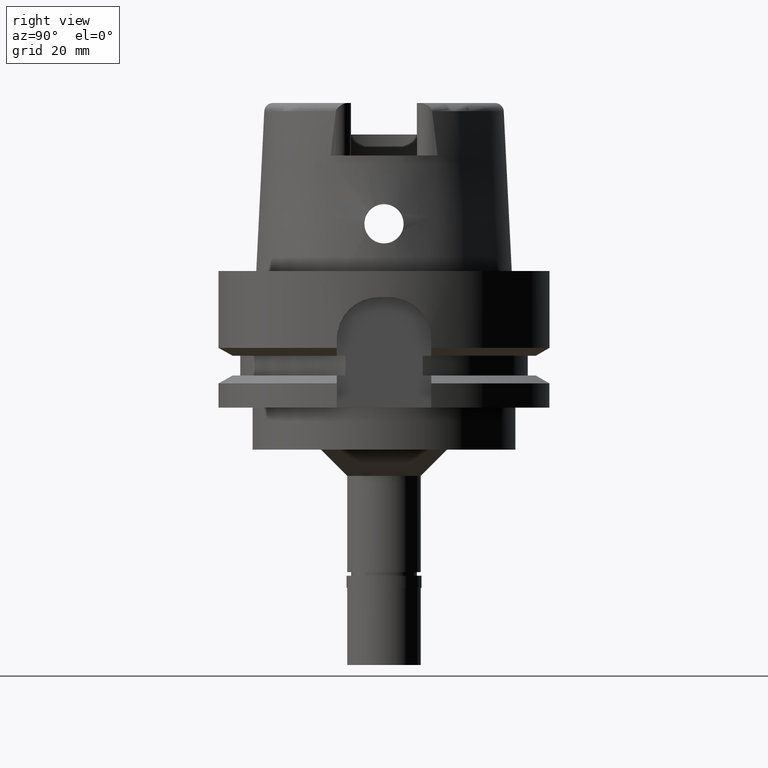
[diagram: clean part render]
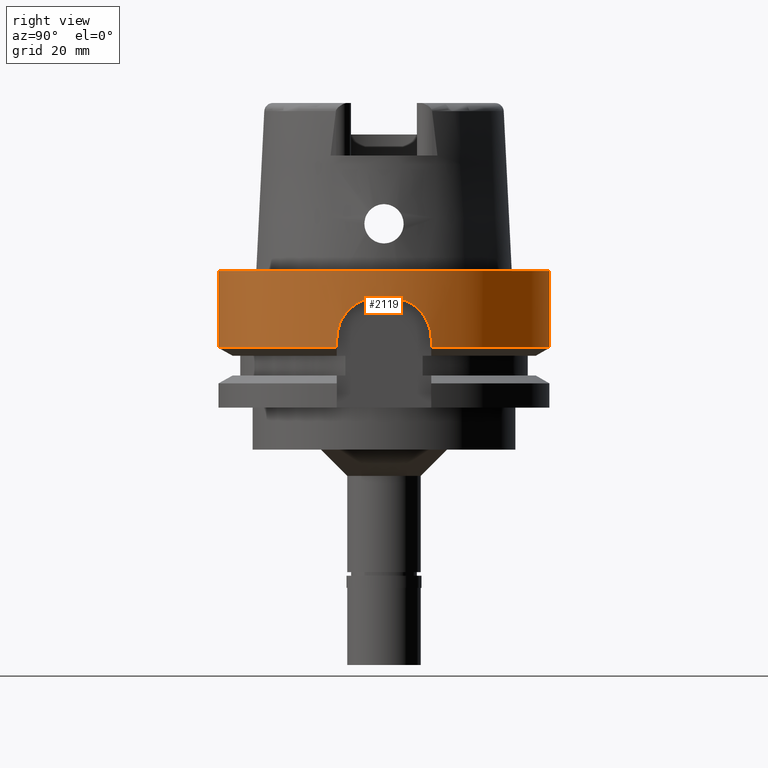
[diagram: same view with one face highlighted and labeled with its STEP entity id]
A machine part, right view. The second image highlights one B-rep face of the part: STEP entity #2119.
In plain terms, the highlighted cylindrical surface (partial cylindrical patch) has radius 31.5 mm, axis along (0, 0, 1).
Its self-contained STEP definition (entity closure, byte-faithful):
#26 = CARTESIAN_POINT ( 'NONE',  ( 31.03663344638616906, -5.383085633474435028, -6.307530880489624181 ) ) ;
#29 = CARTESIAN_POINT ( 'NONE',  ( 31.17435872104948658, 4.518659533347866741, -5.814278688376502302 ) ) ;
#54 = CARTESIAN_POINT ( 'NONE',  ( 31.24687946700141339, -3.985290593393691516, -5.577833305960743004 ) ) ;
#55 = CARTESIAN_POINT ( 'NONE',  ( 30.61213599318177359, 7.428751344989883876, -8.231414660720666632 ) ) ;
#80 = CARTESIAN_POINT ( 'NONE',  ( 30.18691769625000276, -9.000000000000000000, -13.00000000000000000 ) ) ;
#110 = CARTESIAN_POINT ( 'NONE',  ( 0.0000000000000000000, 31.50000000000000000, -14.62250092523999889 ) ) ;
#112 = CARTESIAN_POINT ( 'NONE',  ( 30.38338109575675361, -8.312749073352206253, -9.754961536940461642 ) ) ;
#115 = CARTESIAN_POINT ( 'NONE',  ( 30.99287078825288333, 5.628875832617762143, -6.474981235876556163 ) ) ;
#199 = CYLINDRICAL_SURFACE ( 'NONE', #3473, 31.50000000000000000 ) ;
#212 = VERTEX_POINT ( 'NONE', #4478 ) ;
#267 = EDGE_CURVE ( 'NONE', #4974, #5223, #1328, .T. ) ;
#300 = ORIENTED_EDGE ( 'NONE', *, *, #3530, .T. ) ;
#392 = ORIENTED_EDGE ( 'NONE', *, *, #3962, .F. ) ;
#411 = CARTESIAN_POINT ( 'NONE',  ( 31.46861672570978996, -1.488200907132173567, -5.000000000000000000 ) ) ;
#420 = VERTEX_POINT ( 'NONE', #3676 ) ;
#428 = DIRECTION ( 'NONE',  ( 0.9994959677099152229, -0.03174603174603050915, 0.0000000000000000000 ) ) ;
#442 = CARTESIAN_POINT ( 'NONE',  ( 30.55985815688181262, -7.638395794890114665, -8.535499152351128771 ) ) ;
#444 = CARTESIAN_POINT ( 'NONE',  ( 30.54939248822201492, 7.680150463132295435, -8.598226509369254700 ) ) ;
#449 = VECTOR ( 'NONE', #1901, 1000.000000000000114 ) ;
#458 = VERTEX_POINT ( 'NONE', #4113 ) ;
#469 = CARTESIAN_POINT ( 'NONE',  ( 30.79300890092531162, -6.636313573225984364, -7.322666656235493399 ) ) ;
#473 = CARTESIAN_POINT ( 'NONE',  ( 31.23363680802097875, 4.087791824858366674, -5.619918997865053001 ) ) ;
#495 = CARTESIAN_POINT ( 'NONE',  ( 30.24477678760666421, -8.814620020295809155, -10.96570500827552053 ) ) ;
#498 = CARTESIAN_POINT ( 'NONE',  ( 30.53467349584955315, 7.738550708911373199, -8.687907188826546445 ) ) ;
#506 = DIRECTION ( 'NONE',  ( 0.0000000000000000000, 2.672583210396999878E-14, -1.000000000000000000 ) ) ;
#528 = CARTESIAN_POINT ( 'NONE',  ( 30.91812933337034508, -6.025332726755198820, -6.773984146187545186 ) ) ;
#530 = CARTESIAN_POINT ( 'NONE',  ( 30.57921064807313982, 7.561333724969429682, -8.418752228071568311 ) ) ;
#560 = CARTESIAN_POINT ( 'NONE',  ( 31.30264923016914835, 3.558378593586122740, -5.399542049080238826 ) ) ;
#606 = EDGE_CURVE ( 'NONE', #3160, #458, #2128, .T. ) ;
#643 = CARTESIAN_POINT ( 'NONE',  ( 0.0000000000000000000, 0.0000000000000000000, -8.526512829120999020E-14 ) ) ;
#705 = CARTESIAN_POINT ( 'NONE',  ( 0.0000000000000000000, 0.0000000000000000000, -76.14999999999999147 ) ) ;
#717 = CARTESIAN_POINT ( 'NONE',  ( 30.18691774053999666, -8.999999851450001032, -14.62250212332999943 ) ) ;
#720 = ORIENTED_EDGE ( 'NONE', *, *, #267, .T. ) ;
#799 = CARTESIAN_POINT ( 'NONE',  ( 0.0000000000000000000, 31.50000000000000000, -2.842170943039999687E-14 ) ) ;
#829 = CARTESIAN_POINT ( 'NONE',  ( 30.24383131375610034, 8.809284768081095507, -11.24446789734522412 ) ) ;
#853 = CARTESIAN_POINT ( 'NONE',  ( 30.20114610062653426, 8.954848079886529533, -12.00617997823290750 ) ) ;
#874 = CARTESIAN_POINT ( 'NONE',  ( 30.56907344481259159, -7.601490991195369418, -8.480990727114031458 ) ) ;
#905 = CARTESIAN_POINT ( 'NONE',  ( 30.55749415736111274, -7.647846471066301000, -8.549589038534991303 ) ) ;
#906 = EDGE_CURVE ( 'NONE', #4974, #3954, #1337, .T. ) ;
#907 = CARTESIAN_POINT ( 'NONE',  ( 31.15745267088841430, 4.633752481090207986, -5.871650040009422256 ) ) ;
#930 = CARTESIAN_POINT ( 'NONE',  ( 31.35587015083764939, -3.015409414681223588, -5.253394672931873011 ) ) ;
#933 = CARTESIAN_POINT ( 'NONE',  ( 31.19830741488707204, 4.349376481990786303, -5.734632417979662833 ) ) ;
#938 = CIRCLE ( 'NONE', #3059, 31.49999999999999645 ) ;
#961 = CARTESIAN_POINT ( 'NONE',  ( 31.02865602203456419, -5.428857800723204896, -6.337776359492377942 ) ) ;
#964 = CARTESIAN_POINT ( 'NONE',  ( 31.20992916645485238, 4.265572642272803527, -5.696411939597680885 ) ) ;
#993 = CARTESIAN_POINT ( 'NONE',  ( 31.31585711365147162, -3.400705638983644530, -5.367532853952881489 ) ) ;
#996 = CARTESIAN_POINT ( 'NONE',  ( 31.02066580249227457, 5.474330409161884070, -6.368230373623648966 ) ) ;
#1028 = CARTESIAN_POINT ( 'NONE',  ( 31.01259376239696408, 5.519800880160606660, -6.399094776581989663 ) ) ;
#1138 = DIRECTION ( 'NONE',  ( 0.0000000000000000000, 0.0000000000000000000, 1.000000000000000000 ) ) ;
#1237 = CARTESIAN_POINT ( 'NONE',  ( 0.0000000000000000000, -31.50000000000000000, -8.526512829120999020E-14 ) ) ;
#1247 = ORIENTED_EDGE ( 'NONE', *, *, #606, .T. ) ;
#1279 = CARTESIAN_POINT ( 'NONE',  ( 30.34540322390496669, 8.450321216097385957, -10.08542889944524745 ) ) ;
#1280 = DIRECTION ( 'NONE',  ( 0.0000000000000000000, 0.0000000000000000000, 1.000000000000000000 ) ) ;
#1303 = CARTESIAN_POINT ( 'NONE',  ( 30.73900598983601640, -6.886223324232287446, -7.572239375975030384 ) ) ;
#1323 = VERTEX_POINT ( 'NONE', #3858 ) ;
#1327 = CARTESIAN_POINT ( 'NONE',  ( 31.25396509631713116, -3.929413539984770942, -5.555498481914305842 ) ) ;
#1328 = CIRCLE ( 'NONE', #3477, 31.50000000000000000 ) ;
#1329 = CARTESIAN_POINT ( 'NONE',  ( 31.48412298285999711, 1.000000000000000000, -5.000000000000000000 ) ) ;
#1337 = LINE ( 'NONE', #1395, #3856 ) ;
#1347 = DIRECTION ( 'NONE',  ( 0.0000000000000000000, -1.000000000000000000, 0.0000000000000000000 ) ) ;
#1354 = CARTESIAN_POINT ( 'NONE',  ( 30.37173263198574702, -8.355120326183113733, -9.852968085341531790 ) ) ;
#1359 = CARTESIAN_POINT ( 'NONE',  ( 30.97106060905231217, 5.747262111418426578, -6.560050634569067896 ) ) ;
#1379 = EDGE_CURVE ( 'NONE', #420, #458, #3559, .T. ) ;
#1381 = CARTESIAN_POINT ( 'NONE',  ( 30.55857131583558228, -7.643540776439247786, -8.543165319097539623 ) ) ;
#1386 = CARTESIAN_POINT ( 'NONE',  ( 31.22918740843602947, 4.121688571171644000, -5.634170734255356194 ) ) ;
#1395 = CARTESIAN_POINT ( 'NONE',  ( 0.0000000000000000000, 31.50000000000000000, -2.842170943039999687E-14 ) ) ;
#1412 = CARTESIAN_POINT ( 'NONE',  ( 31.03198905377591643, -5.409777320757493513, -6.325120937983273350 ) ) ;
#1440 = CARTESIAN_POINT ( 'NONE',  ( 30.74070144037477803, 6.875142837730708223, -7.569233347023435421 ) ) ;
#1566 = CARTESIAN_POINT ( 'NONE',  ( 30.35411534260036248, 8.418902098753179075, -10.00664407658847210 ) ) ;
#1601 = VECTOR ( 'NONE', #2481, 1000.000000000000114 ) ;
#1677 = CARTESIAN_POINT ( 'NONE',  ( 30.29363072907395704, 8.635183415629853698, -10.60802147078846147 ) ) ;
#1678 = DIRECTION ( 'NONE',  ( 0.9583148474999051425, 0.2857142857143015191, 0.0000000000000000000 ) ) ;
#1697 = CARTESIAN_POINT ( 'NONE',  ( 30.81476710343828884, -6.534538615942683926, -7.223088386818556472 ) ) ;
#1727 = CARTESIAN_POINT ( 'NONE',  ( 30.55771624358173355, -7.646958752054598740, -8.548264521606132149 ) ) ;
#1728 = CARTESIAN_POINT ( 'NONE',  ( 30.76152471479192485, 6.780918870593624526, -7.469743429890146835 ) ) ;
#1749 = ORIENTED_EDGE ( 'NONE', *, *, #1379, .F. ) ;
#1754 = CARTESIAN_POINT ( 'NONE',  ( 30.80217053917683856, -6.593656645346364975, -7.280559492805669386 ) ) ;
#1755 = CARTESIAN_POINT ( 'NONE',  ( 30.51787805928046282, 7.804719171020530588, -8.792332863871537896 ) ) ;
#1768 = EDGE_LOOP ( 'NONE', ( #3099, #4848, #720, #300, #5350, #392, #2343, #1247, #1749, #3182 ) ) ;
#1783 = CARTESIAN_POINT ( 'NONE',  ( 31.24058215409277395, -4.034357660955599556, -5.597789041360073270 ) ) ;
#1812 = EDGE_CURVE ( 'NONE', #212, #420, #4200, .T. ) ;
#1814 = CARTESIAN_POINT ( 'NONE',  ( 31.24381505061356989, -4.009223485782702490, -5.587534271361769278 ) ) ;
#1817 = CARTESIAN_POINT ( 'NONE',  ( 31.43990737478775088, 2.002766862949021398, -5.045690476645915190 ) ) ;
#1901 = DIRECTION ( 'NONE',  ( 2.729643896281972968E-08, 9.155613962326918709E-08, -0.9999999999999954481 ) ) ;
#2098 = CARTESIAN_POINT ( 'NONE',  ( 30.18691748910000072, 9.000000694808999668, -14.62249532136999974 ) ) ;
#2119 = ADVANCED_FACE ( 'NONE', ( #4063 ), #199, .T. ) ;
#2127 = CARTESIAN_POINT ( 'NONE',  ( 31.12693308569610551, -4.834462653061899040, -5.977585850986851135 ) ) ;
#2128 = CIRCLE ( 'NONE', #2219, 31.49999999999999289 ) ;
#2153 = CARTESIAN_POINT ( 'NONE',  ( 30.59373205160579801, -7.501973478353002101, -8.338711301485121297 ) ) ;
#2158 = CARTESIAN_POINT ( 'NONE',  ( 30.55144701227827753, 7.671969250803207352, -8.585836905927422436 ) ) ;
#2182 = CARTESIAN_POINT ( 'NONE',  ( 30.41562304289737995, -8.194298781703006185, -9.498868511310901042 ) ) ;
#2183 = CARTESIAN_POINT ( 'NONE',  ( 30.54322316890336353, 7.704675066121105864, -8.635611123173342563 ) ) ;
#2205 = CARTESIAN_POINT ( 'NONE',  ( 30.18691769624999566, -8.999999999999996447, -12.01248476682870781 ) ) ;
#2206 = CARTESIAN_POINT ( 'NONE',  ( 31.01919159846443819, 5.482673346476335752, -6.373864731942130213 ) ) ;
#2219 = AXIS2_PLACEMENT_3D ( 'NONE', #3902, #3784, #428 ) ;
#2233 = LINE ( 'NONE', #4804, #449 ) ;
#2235 = CARTESIAN_POINT ( 'NONE',  ( 31.04584622524980020, -5.329778090419363679, -6.272792223165086334 ) ) ;
#2238 = CARTESIAN_POINT ( 'NONE',  ( 30.77754332285056549, 6.707680197871349392, -7.394416585485136473 ) ) ;
#2266 = CARTESIAN_POINT ( 'NONE',  ( 30.41128267491075476, 8.211241523440316215, -9.526230352879299090 ) ) ;
#2343 = ORIENTED_EDGE ( 'NONE', *, *, #5201, .F. ) ;
#2360 = EDGE_CURVE ( 'NONE', #1323, #5551, #5187, .T. ) ;
#2412 = B_SPLINE_CURVE_WITH_KNOTS ( 'NONE', 3,
 ( #3910, #411, #3450, #5228, #930, #993, #5173, #4841, #1327, #54, #1814, #5255, #1783, #3540, #4285, #2127, #3421, #2631, #2569, #2235, #26, #1412, #2659, #961, #2602, #3881, #4394, #3115, #528, #3938, #3855, #3734, #3512, #1697, #1754, #5149, #469, #3969, #1303, #3006, #4314, #4726, #2153, #3029, #874, #4758, #442, #1381, #1727, #905, #3084, #4340, #3483, #2182, #5203, #112, #1354, #3057, #4781, #4369, #495, #2205, #80 ),
 .UNSPECIFIED., .F., .F.,
 ( 4, 2, 2, 1, 1, 1, 1, 2, 2, 2, 2, 1, 1, 1, 1, 1, 2, 2, 2, 2, 2, 1, 1, 2, 2, 2, 2, 1, 1, 1, 1, 2, 2, 2, 2, 1, 1, 2, 2, 4 ),
 ( 0.0000000000000000000, 0.1249999999999484024, 0.1874999999999226175, 0.2187499999999096834, 0.2343749999999031330, 0.2421874999998998579, 0.2460937499998983036, 0.2480468749998974431, 0.2499999999998965827, 0.3124999999998716582, 0.3437499999998592792, 0.3593749999998530620, 0.3671874999998499534, 0.3710937499998485101, 0.3730468749998477884, 0.3740234374998473998, 0.3745117187498472333, 0.3749999999998470668, 0.4374999999998507305, 0.4687499999998525624, 0.4843749999998535061, 0.4921874999998538946, 0.4960937499998541722, 0.4980468749998543387, 0.4999999999998544498, 0.5624999999998628875, 0.5937499999998671063, 0.6093749999998693268, 0.6171874999998703260, 0.6210937499998707700, 0.6230468749998709921, 0.6240234374998711031, 0.6249999999998712141, 0.6874999999998941957, 0.7187499999999054090, 0.7343749999999109601, 0.7421874999999138467, 0.7460937499999151790, 0.7499999999999165112, 1.000000000000000000 ),
 .UNSPECIFIED. ) ;
#2481 = DIRECTION ( 'NONE',  ( 1.276752698706999807E-07, -4.282347142110000539E-07, 0.9999999999999001910 ) ) ;
#2517 = CARTESIAN_POINT ( 'NONE',  ( 30.26161681922677360, 8.747813789288080955, -10.98959462182621571 ) ) ;
#2534 = CARTESIAN_POINT ( 'NONE',  ( 31.48412298285999711, -1.000000000000000000, -5.000000000000000000 ) ) ;
#2546 = CARTESIAN_POINT ( 'NONE',  ( 30.35061382121082119, 8.431535771292155701, -10.03814853257083328 ) ) ;
#2569 = CARTESIAN_POINT ( 'NONE',  ( 31.06396775754942041, -5.223487397545998334, -6.205064633579636002 ) ) ;
#2602 = CARTESIAN_POINT ( 'NONE',  ( 31.02798801318804323, -5.432675218027885222, -6.340315648122138548 ) ) ;
#2604 = CARTESIAN_POINT ( 'NONE',  ( 31.46846379087025980, 1.493015926389944958, -4.999999999999999112 ) ) ;
#2631 = CARTESIAN_POINT ( 'NONE',  ( 31.07897931307315886, -5.133008463654109121, -6.149956378918812305 ) ) ;
#2634 = CARTESIAN_POINT ( 'NONE',  ( 31.23186145562887717, 4.101338621592033995, -5.625601535992445612 ) ) ;
#2659 = CARTESIAN_POINT ( 'NONE',  ( 31.02965735667615377, -5.423132310040314152, -6.333971399401776559 ) ) ;
#2660 = CARTESIAN_POINT ( 'NONE',  ( 30.45983657400283207, 8.028573397972747827, -9.176856534607734872 ) ) ;
#2689 = CARTESIAN_POINT ( 'NONE',  ( 30.99947621479664761, 5.592620960296219579, -6.449470411089251343 ) ) ;
#2898 = CARTESIAN_POINT ( 'NONE',  ( 30.18691769625001697, 9.000000000000005329, -12.50993823894786949 ) ) ;
#3006 = CARTESIAN_POINT ( 'NONE',  ( 30.69448727374249941, -7.081001026183815661, -7.795178927667747004 ) ) ;
#3029 = CARTESIAN_POINT ( 'NONE',  ( 30.58191356367283831, -7.549873415503695284, -8.406089060930494128 ) ) ;
#3034 = CARTESIAN_POINT ( 'NONE',  ( 31.01706501403041827, 5.494676259595105527, -6.381993646790568242 ) ) ;
#3057 = CARTESIAN_POINT ( 'NONE',  ( 30.36687247676056955, -8.372751038419208314, -9.894719195344126916 ) ) ;
#3059 = AXIS2_PLACEMENT_3D ( 'NONE', #4292, #1280, #1678 ) ;
#3061 = CARTESIAN_POINT ( 'NONE',  ( 30.47694740753188469, 7.963406891760588024, -9.059204759596676482 ) ) ;
#3084 = CARTESIAN_POINT ( 'NONE',  ( 30.51662518845597560, -7.811143418270732219, -8.793813878757108071 ) ) ;
#3099 = ORIENTED_EDGE ( 'NONE', *, *, #4922, .T. ) ;
#3115 = CARTESIAN_POINT ( 'NONE',  ( 30.97763323850826112, -5.714776941059046322, -6.531627090052601226 ) ) ;
#3116 = CARTESIAN_POINT ( 'NONE',  ( 30.66990727410303208, 7.185144151320341344, -7.924465119239894051 ) ) ;
#3150 = CARTESIAN_POINT ( 'NONE',  ( 30.77986034916220603, 6.697031627414991029, -7.383608249565543069 ) ) ;
#3160 = VERTEX_POINT ( 'NONE', #2534 ) ;
#3182 = ORIENTED_EDGE ( 'NONE', *, *, #1812, .F. ) ;
#3395 = CARTESIAN_POINT ( 'NONE',  ( 30.31097159690785858, 8.573765496220600468, -10.41742300278711397 ) ) ;
#3421 = CARTESIAN_POINT ( 'NONE',  ( 31.10830750885746454, -4.953066203277209034, -6.043514258052868904 ) ) ;
#3424 = CARTESIAN_POINT ( 'NONE',  ( 30.35609856988868316, 8.411740408467483832, -9.988965892745607533 ) ) ;
#3450 = CARTESIAN_POINT ( 'NONE',  ( 31.44049564886026360, -1.992538554008449703, -5.044800751786151949 ) ) ;
#3454 = CARTESIAN_POINT ( 'NONE',  ( 31.22287083475301017, 4.169378513457666635, -5.654485442704471510 ) ) ;
#3472 = CARTESIAN_POINT ( 'NONE',  ( 0.0000000000000000000, 0.0000000000000000000, -14.62250092523999889 ) ) ;
#3473 = AXIS2_PLACEMENT_3D ( 'NONE', #705, #1138, #4116 ) ;
#3477 = AXIS2_PLACEMENT_3D ( 'NONE', #643, #4421, #3964 ) ;
#3478 = AXIS2_PLACEMENT_3D ( 'NONE', #3472, #4716, #1347 ) ;
#3483 = CARTESIAN_POINT ( 'NONE',  ( 30.43104826946283836, -8.136970905353045680, -9.383217917543287712 ) ) ;
#3489 = CARTESIAN_POINT ( 'NONE',  ( 31.02095661915157265, 5.472682574377095044, -6.367118908306726333 ) ) ;
#3512 = CARTESIAN_POINT ( 'NONE',  ( 30.82521666883619460, -6.484826294840480010, -7.176025913283851310 ) ) ;
#3530 = EDGE_CURVE ( 'NONE', #5223, #1323, #5459, .T. ) ;
#3540 = CARTESIAN_POINT ( 'NONE',  ( 31.21172198673149012, -4.257592433197697090, -5.689537215227926659 ) ) ;
#3559 = B_SPLINE_CURVE_WITH_KNOTS ( 'NONE', 3,
 ( #4676, #2898, #853, #829, #2517, #1677, #3395, #5126, #1279, #2546, #1566, #3424, #4317, #2266, #2660, #3061, #4397, #1755, #498, #2183, #5204, #444, #4430, #2158, #530, #55, #3116, #4345, #5289, #1440, #1728, #4844, #2238, #3150, #4812, #4873, #3911, #5230, #3971, #1359, #115, #2689, #4761, #1028, #3034, #2206, #3942, #996, #3489, #4785, #4001, #3885, #907, #29, #933, #964, #3454, #1386, #2634, #473, #5176, #560, #4370, #1817, #2604, #1329 ),
 .UNSPECIFIED., .F., .F.,
 ( 4, 2, 2, 1, 1, 1, 2, 2, 2, 2, 1, 1, 1, 1, 2, 2, 2, 2, 1, 1, 1, 1, 2, 2, 2, 2, 2, 1, 1, 1, 1, 2, 2, 2, 2, 1, 1, 1, 2, 2, 2, 4 ),
 ( 0.0000000000000000000, 0.1249999999999765743, 0.1874999999999650280, 0.2187499999999594491, 0.2343749999999565070, 0.2421874999999550637, 0.2460937499999542033, 0.2499999999999533706, 0.3124999999999406586, 0.3437499999999341638, 0.3593749999999306666, 0.3671874999999291123, 0.3710937499999283351, 0.3730468749999280575, 0.3740234374999280575, 0.3749999999999281131, 0.4374999999999340528, 0.4687499999999368838, 0.4843749999999383271, 0.4921874999999388822, 0.4960937499999391598, 0.4980468749999392708, 0.4990234374999392708, 0.4999999999999393818, 0.5624999999999473754, 0.5937499999999513722, 0.6093749999999531486, 0.6171874999999540368, 0.6210937499999548139, 0.6230468749999553690, 0.6240234374999557021, 0.6245117187499558131, 0.6249999999999559241, 0.6874999999999626965, 0.7187499999999663602, 0.7343749999999680256, 0.7421874999999690248, 0.7460937499999695799, 0.7480468749999696909, 0.7499999999999699130, 0.8749999999999850120, 1.000000000000000000 ),
 .UNSPECIFIED. ) ;
#3676 = CARTESIAN_POINT ( 'NONE',  ( 30.18691769625000276, 9.000000000000000000, -13.00000000000000000 ) ) ;
#3734 = CARTESIAN_POINT ( 'NONE',  ( 30.84565248005420912, -6.386801006217507570, -7.084735888510722113 ) ) ;
#3784 = DIRECTION ( 'NONE',  ( 0.0000000000000000000, 0.0000000000000000000, 1.000000000000000000 ) ) ;
#3855 = CARTESIAN_POINT ( 'NONE',  ( 30.85865859476248829, -6.323319126776554278, -7.027655193205861295 ) ) ;
#3856 = VECTOR ( 'NONE', #506, 1000.000000000000000 ) ;
#3858 = CARTESIAN_POINT ( 'NONE',  ( 0.0000000000000000000, -31.50000000000000000, -14.62250092523999889 ) ) ;
#3881 = CARTESIAN_POINT ( 'NONE',  ( 31.02747480202666353, -5.435605786325944599, -6.342267469645570976 ) ) ;
#3885 = CARTESIAN_POINT ( 'NONE',  ( 31.10391375759716226, 4.984597897420020018, -6.057874923369390707 ) ) ;
#3902 = CARTESIAN_POINT ( 'NONE',  ( 0.0000000000000000000, 0.0000000000000000000, -5.000000000000000000 ) ) ;
#3910 = CARTESIAN_POINT ( 'NONE',  ( 31.48412298285999711, -1.000000000000000000, -5.000000000000000000 ) ) ;
#3911 = CARTESIAN_POINT ( 'NONE',  ( 30.84394190086433341, 6.401884619876600624, -7.085703789139249587 ) ) ;
#3938 = CARTESIAN_POINT ( 'NONE',  ( 30.89582366057614493, -6.139336169174081981, -6.866995857884728771 ) ) ;
#3942 = CARTESIAN_POINT ( 'NONE',  ( 31.02022763033577490, 5.476812208389962855, -6.369905018486312187 ) ) ;
#3954 = VERTEX_POINT ( 'NONE', #110 ) ;
#3962 = EDGE_CURVE ( 'NONE', #5250, #5551, #2233, .T. ) ;
#3964 = DIRECTION ( 'NONE',  ( 0.0000000000000000000, 1.000000000000000000, 0.0000000000000000000 ) ) ;
#3969 = CARTESIAN_POINT ( 'NONE',  ( 30.79087550876559121, -6.646206125878452831, -7.332508309814163461 ) ) ;
#3971 = CARTESIAN_POINT ( 'NONE',  ( 30.95386195682621278, 5.839049512005330733, -6.628121126718468759 ) ) ;
#4001 = CARTESIAN_POINT ( 'NONE',  ( 31.06446013165894371, 5.225984247936127147, -6.200853729114707669 ) ) ;
#4063 = FACE_OUTER_BOUND ( 'NONE', #1768, .T. ) ;
#4113 = CARTESIAN_POINT ( 'NONE',  ( 31.48412298285999711, 1.000000000000000000, -5.000000000000000000 ) ) ;
#4116 = DIRECTION ( 'NONE',  ( 0.0000000000000000000, 1.000000000000000000, 0.0000000000000000000 ) ) ;
#4200 = LINE ( 'NONE', #2098, #1601 ) ;
#4285 = CARTESIAN_POINT ( 'NONE',  ( 31.18003015515945719, -4.484016578092276717, -5.793666275038023450 ) ) ;
#4292 = CARTESIAN_POINT ( 'NONE',  ( 0.0000000000000000000, 0.0000000000000000000, -14.62250092523999889 ) ) ;
#4297 = CARTESIAN_POINT ( 'NONE',  ( 0.0000000000000000000, -31.50000000000000000, -2.842170943039999687E-14 ) ) ;
#4314 = CARTESIAN_POINT ( 'NONE',  ( 30.63637769845040282, -7.326798453224120600, -8.102163201867428555 ) ) ;
#4317 = CARTESIAN_POINT ( 'NONE',  ( 30.38261821084281422, 8.315908835268356114, -9.754328887710789431 ) ) ;
#4340 = CARTESIAN_POINT ( 'NONE',  ( 30.48014087788117621, -7.951930040477920514, -9.032565809538386503 ) ) ;
#4345 = CARTESIAN_POINT ( 'NONE',  ( 30.69056157828649134, 7.096469435209187715, -7.817862002295410839 ) ) ;
#4369 = CARTESIAN_POINT ( 'NONE',  ( 30.36230306692489478, -8.389309792964549928, -9.934319753468580316 ) ) ;
#4370 = CARTESIAN_POINT ( 'NONE',  ( 31.35700009443719694, 3.035449773159023312, -5.245419057376666139 ) ) ;
#4394 = CARTESIAN_POINT ( 'NONE',  ( 31.00741835760727483, -5.550090999931375002, -6.418563416018272072 ) ) ;
#4397 = CARTESIAN_POINT ( 'NONE',  ( 30.50400295857303234, 7.858763791958621070, -8.881494820584961758 ) ) ;
#4421 = DIRECTION ( 'NONE',  ( 0.0000000000000000000, 0.0000000000000000000, -1.000000000000000000 ) ) ;
#4430 = CARTESIAN_POINT ( 'NONE',  ( 30.55063195994033265, 7.675215980264477267, -8.590747037226377003 ) ) ;
#4478 = CARTESIAN_POINT ( 'NONE',  ( 30.18691748910000072, 9.000000694808999668, -14.62249532136999974 ) ) ;
#4630 = DIRECTION ( 'NONE',  ( 0.0000000000000000000, -2.672583210396999878E-14, -1.000000000000000000 ) ) ;
#4658 = CARTESIAN_POINT ( 'NONE',  ( 30.18691769625000276, -9.000000000000000000, -13.00000000000000000 ) ) ;
#4676 = CARTESIAN_POINT ( 'NONE',  ( 30.18691769625000276, 9.000000000000000000, -13.00000000000000000 ) ) ;
#4684 = VECTOR ( 'NONE', #4630, 1000.000000000000000 ) ;
#4716 = DIRECTION ( 'NONE',  ( 0.0000000000000000000, 0.0000000000000000000, 1.000000000000000000 ) ) ;
#4726 = CARTESIAN_POINT ( 'NONE',  ( 30.61845258982775064, -7.401002975490601266, -8.199974303798571285 ) ) ;
#4758 = CARTESIAN_POINT ( 'NONE',  ( 30.56289041464782841, -7.626264242950800742, -8.517490255067780680 ) ) ;
#4761 = CARTESIAN_POINT ( 'NONE',  ( 31.00838740482762645, 5.543240980482119440, -6.415217339326622970 ) ) ;
#4781 = CARTESIAN_POINT ( 'NONE',  ( 30.36366171628465338, -8.384388762027752406, -9.922496245085302036 ) ) ;
#4785 = CARTESIAN_POINT ( 'NONE',  ( 31.02090787424477369, 5.472959324783587931, -6.367305207594175620 ) ) ;
#4804 = CARTESIAN_POINT ( 'NONE',  ( 30.18691769625000276, -9.000000000000000000, -13.00000000000000000 ) ) ;
#4812 = CARTESIAN_POINT ( 'NONE',  ( 30.78140776229680853, 6.689914767091069692, -7.376398342578495360 ) ) ;
#4841 = CARTESIAN_POINT ( 'NONE',  ( 31.26787765259141949, -3.817534181336587285, -5.512028820147249597 ) ) ;
#4844 = CARTESIAN_POINT ( 'NONE',  ( 30.77216558185523354, 6.732340352267773831, -7.419589573427117557 ) ) ;
#4848 = ORIENTED_EDGE ( 'NONE', *, *, #906, .F. ) ;
#4873 = CARTESIAN_POINT ( 'NONE',  ( 30.78200641519601177, 6.687160013718862039, -7.373611295023318135 ) ) ;
#4922 = EDGE_CURVE ( 'NONE', #212, #3954, #938, .T. ) ;
#4974 = VERTEX_POINT ( 'NONE', #799 ) ;
#5126 = CARTESIAN_POINT ( 'NONE',  ( 30.33353695697375585, 8.493000709238764045, -10.19590689768750558 ) ) ;
#5149 = CARTESIAN_POINT ( 'NONE',  ( 30.79668513921536999, -6.619221172672577147, -7.305748687971354016 ) ) ;
#5173 = CARTESIAN_POINT ( 'NONE',  ( 31.29466795571155657, -3.593348074429351779, -5.429864181951122859 ) ) ;
#5176 = CARTESIAN_POINT ( 'NONE',  ( 31.23435039042770356, 4.082335735350706152, -5.617637055085798359 ) ) ;
#5187 = CIRCLE ( 'NONE', #3478, 31.50000000000000000 ) ;
#5201 = EDGE_CURVE ( 'NONE', #3160, #5250, #2412, .T. ) ;
#5203 = CARTESIAN_POINT ( 'NONE',  ( 30.39389366741013632, -8.274269114523034929, -9.669989036824016893 ) ) ;
#5204 = CARTESIAN_POINT ( 'NONE',  ( 30.54753599412257969, 7.687537864818462907, -8.609444511414816148 ) ) ;
#5223 = VERTEX_POINT ( 'NONE', #1237 ) ;
#5228 = CARTESIAN_POINT ( 'NONE',  ( 31.37939180403692774, -2.758542968235155879, -5.191343995676047207 ) ) ;
#5230 = CARTESIAN_POINT ( 'NONE',  ( 30.89429040187080489, 6.148798648255844768, -6.871473692529264987 ) ) ;
#5250 = VERTEX_POINT ( 'NONE', #4658 ) ;
#5255 = CARTESIAN_POINT ( 'NONE',  ( 31.24176594677507168, -4.025175432461312930, -5.594030261440773089 ) ) ;
#5289 = CARTESIAN_POINT ( 'NONE',  ( 30.72363885037625053, 6.950995680925296405, -7.652942504888145869 ) ) ;
#5350 = ORIENTED_EDGE ( 'NONE', *, *, #2360, .T. ) ;
#5459 = LINE ( 'NONE', #4297, #4684 ) ;
#5551 = VERTEX_POINT ( 'NONE', #717 ) ;